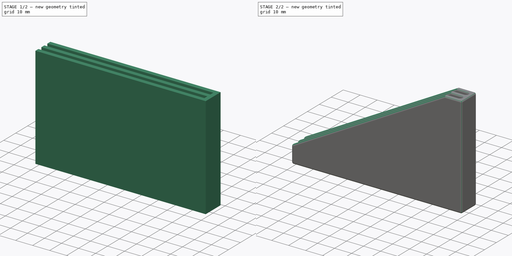
[diagram: build sequence overview — one tinted view per stage of 2, left to right]
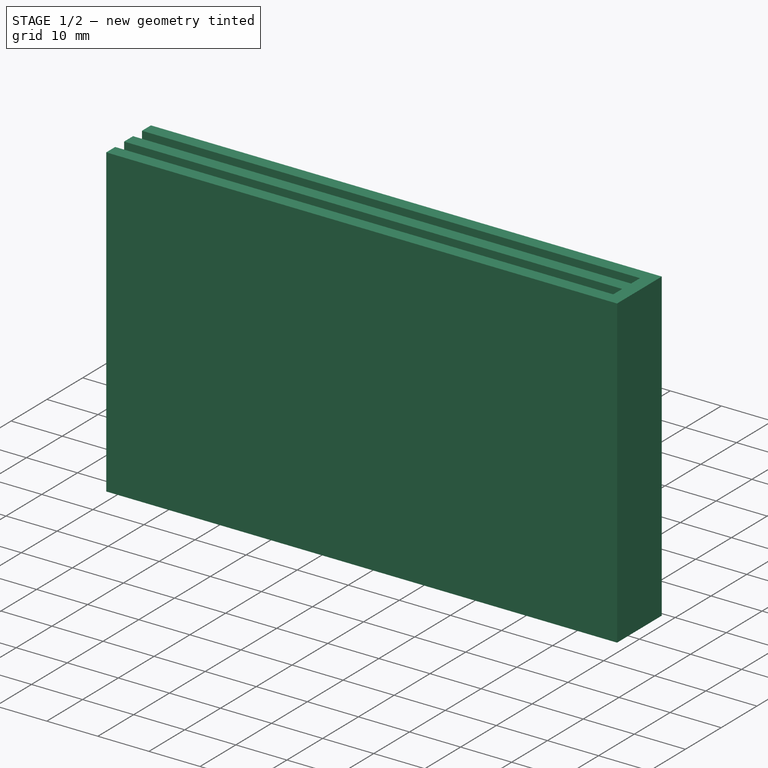
[diagram: stage 1 of 2 — iso view after this stage's code; geometry added in this stage tinted green]
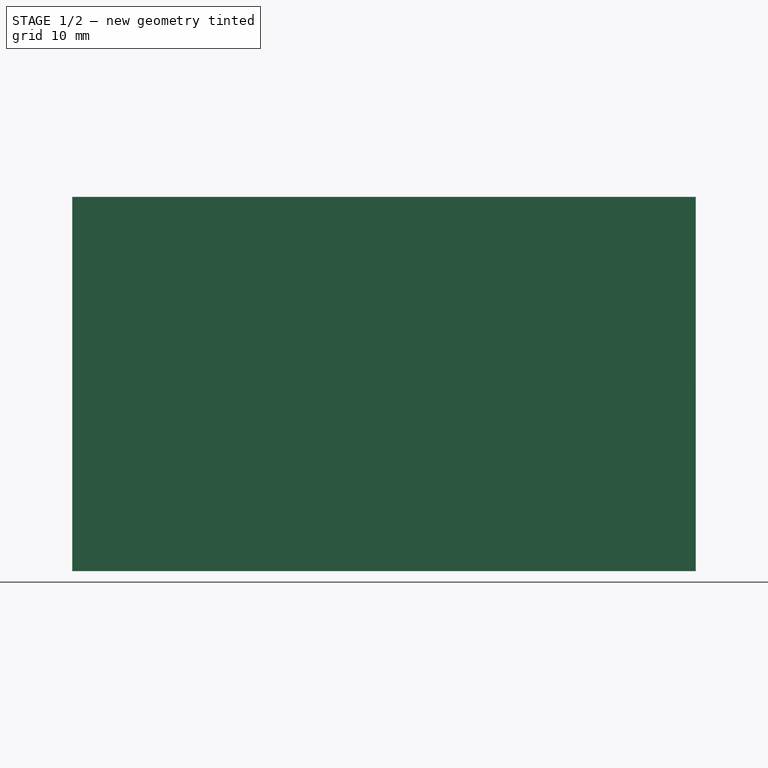
[diagram: stage 1 of 2 — front view after this stage's code; geometry added in this stage tinted green]
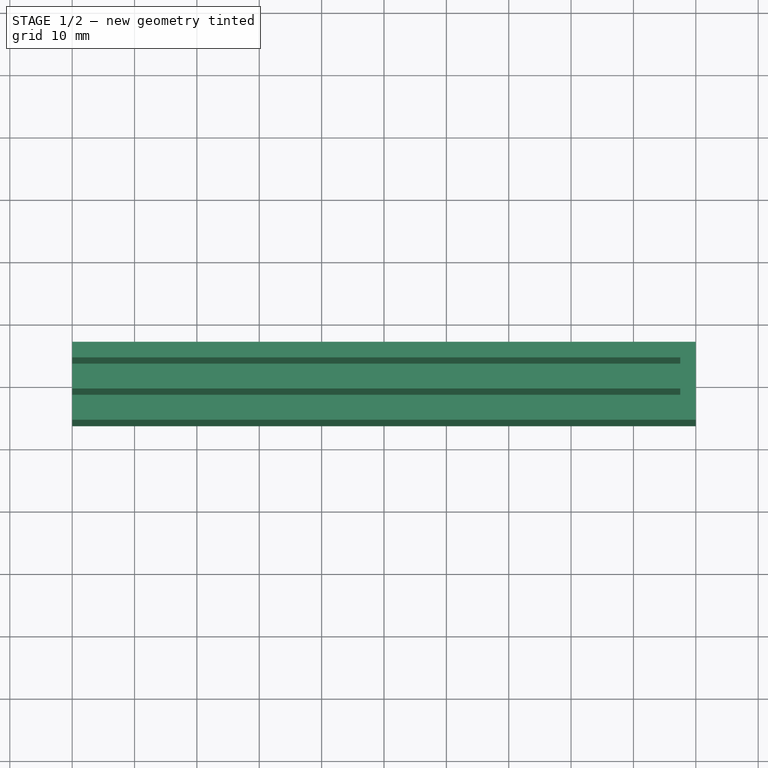
[diagram: stage 1 of 2 — top view after this stage's code; geometry added in this stage tinted green]
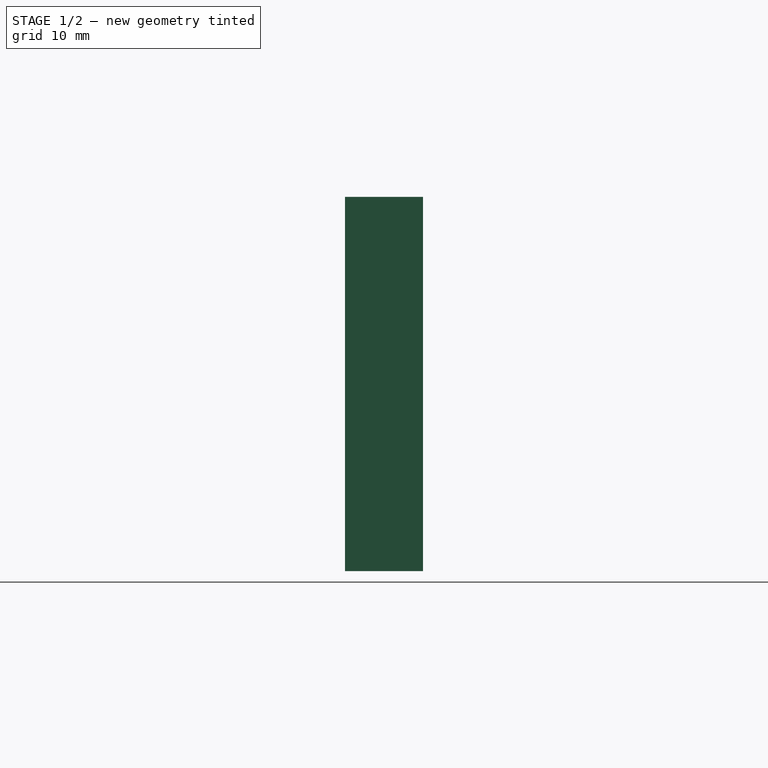
[diagram: stage 1 of 2 — right view after this stage's code; geometry added in this stage tinted green]
FCSTD DOCUMENT  (FreeCAD 1.1R20260325 (Git shallow))
Label: BuildPlateMounts
License: All rights reserved
LicenseURL: https://en.wikipedia.org/wiki/All_rights_reserved
objects: Sketcher::SketchObject×2, App::Point×1, PartDesign::Pad×1, PartDesign::Pocket×1, PartDesign::Chamfer×1, PartDesign::Fillet×1, PartDesign::Body×1
note: 17 computed .brp shape members not serialized (recipe doc carries the construction recipe); baked Part::Feature solids carry a one-line shape summary decoded from their .brp

FEATURE [App::Point] Origin001
  Role = Origin
FEATURE [Sketcher::SketchObject] Sketch  label="MainBody"
  ArcFitTolerance = 1e-06
  AttachmentSupport = -> [Origin]
  ExternalTypes = [0]
  FullyConstrained = true
  MakeInternals = false
  MapMode = 5
  _ExternalGeoVersion = 1
  sketch-geometry (5):
    g0: LineSegment StartX=-50 StartY=6.25 StartZ=0 EndX=-50 EndY=-6.25 EndZ=0
    g1: LineSegment StartX=-50 StartY=-6.25 StartZ=0 EndX=50 EndY=-6.25 EndZ=0
    g2: LineSegment StartX=50 StartY=-6.25 StartZ=0 EndX=50 EndY=6.25 EndZ=0
    g3: LineSegment StartX=50 StartY=6.25 StartZ=0 EndX=-50 EndY=6.25 EndZ=0
    g4: GeomPoint [constr] X=0 Y=-1e-16 Z=0
  constraints (12):
    c: Coincident(g0,g1)
    c: Coincident(g1,g2)
    c: Coincident(g2,g3)
    c: Coincident(g3,g0)
    c: Vertical(g0)
    c: Vertical(g2)
    c: Horizontal(g1)
    c: Horizontal(g3)
    c: Symmetric(g2,g0,g4)
    c: Coincident(g4,g-1)
    c: DistanceX(g3,g3) = 100
    c: Distance(g2,g2) = 12.5
FEATURE [PartDesign::Pad] Pad  label="MainBodyPad"
  Direction = (0,0,1)
  Length = 60
  Length2 = 10
  Profile = -> Sketch
  ReferenceAxis = -> Sketch [N_Axis]
  Refine = true
  SideType = 0
  Suppressed = false
  Type = 0
  Type2 = 0
FEATURE [Sketcher::SketchObject] Sketch001  label="Slots"
  ArcFitTolerance = 1e-06
  AttachmentSupport = -> [Pad]
  ExternalGeometry = -> [Pad]
  ExternalTypes = [0,0,0,0]
  FullyConstrained = true
  MakeInternals = false
  MapMode = 5
  Placement = pos=(0,0,60) rot=(0,0,1;0rad)
  _ExternalGeoVersion = 1
  sketch-geometry (8):
    g0: LineSegment StartX=-50 StartY=1.25 StartZ=0 EndX=47.5 EndY=1.25 EndZ=0
    g1: LineSegment StartX=47.5 StartY=1.25 StartZ=0 EndX=47.5 EndY=3.75 EndZ=0
    g2: LineSegment StartX=47.5 StartY=3.75 StartZ=0 EndX=-50 EndY=3.75 EndZ=0
    g3: LineSegment StartX=-50 StartY=3.75 StartZ=0 EndX=-50 EndY=1.25 EndZ=0
    g4: LineSegment StartX=-50 StartY=-1.25 StartZ=0 EndX=-50 EndY=-3.75 EndZ=0
    g5: LineSegment StartX=-50 StartY=-3.75 StartZ=0 EndX=47.5 EndY=-3.75 EndZ=0
    g6: LineSegment StartX=47.5 StartY=-3.75 StartZ=0 EndX=47.5 EndY=-1.25 EndZ=0
    g7: LineSegment StartX=47.5 StartY=-1.25 StartZ=0 EndX=-50 EndY=-1.25 EndZ=0
  constraints (24):
    c: Coincident(g0,g1)
    c: Coincident(g1,g2)
    c: Coincident(g2,g3)
    c: Coincident(g3,g0)
    c: Horizontal(g0)
    c: Horizontal(g2)
    c: Vertical(g1)
    c: Vertical(g3)
    c: PointOnObject(g0,g-4)
    c: Coincident(g4,g5)
    c: Coincident(g5,g6)
    c: Coincident(g6,g7)
    c: Coincident(g7,g4)
    c: Vertical(g4)
    c: Vertical(g6)
    c: Horizontal(g5)
    c: Horizontal(g7)
    c: PointOnObject(g4,g-4)
    c: Distance(g4,g4) = 2.5
    c: Distance(g3,g3) = 2.5
    c: Distance(g-3,g2) = 2.5
    c: Distance(g-5,g5) = 2.5
    c: Distance(g-6,g1) = 2.5
    c: Distance(g-6,g6) = 2.5
FEATURE [PartDesign::Pocket] Pocket  label="SlotsPocket"
  BaseFeature = -> Pad
  Direction = (0,0,-1)
  Length = 57.5
  Length2 = 5
  Profile = -> Sketch001
  ReferenceAxis = -> Sketch001 [N_Axis]
  Refine = true
  SideType = 0
  Suppressed = false
  Type = 0
  Type2 = 0
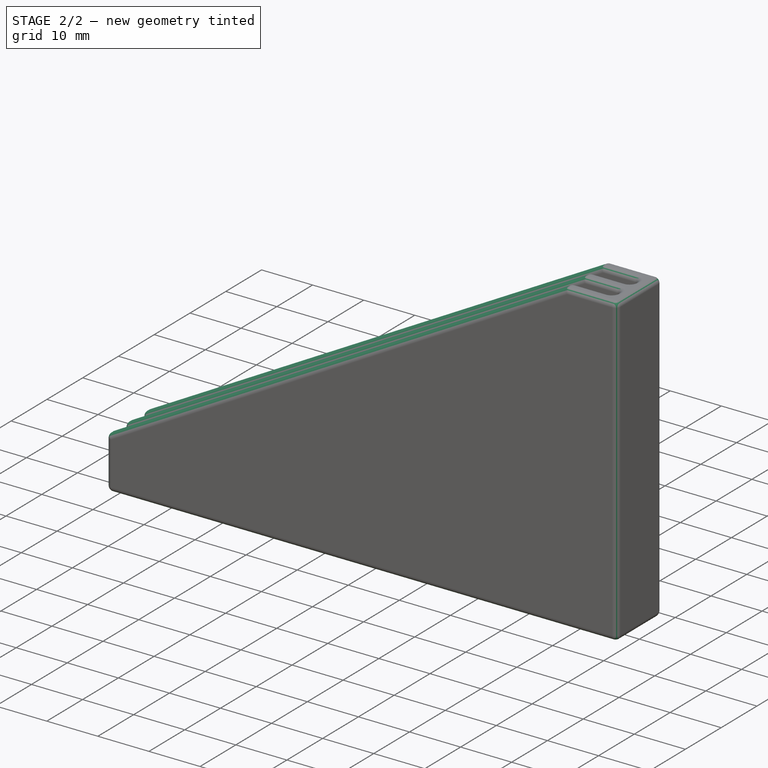
[diagram: stage 2 of 2 — iso view after this stage's code; geometry added in this stage tinted green]
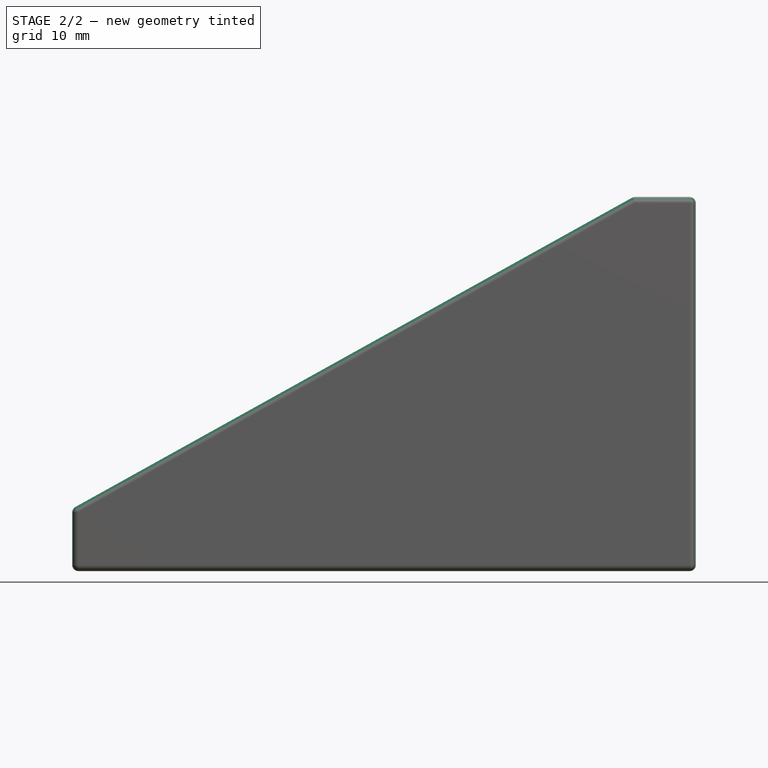
[diagram: stage 2 of 2 — front view after this stage's code; geometry added in this stage tinted green]
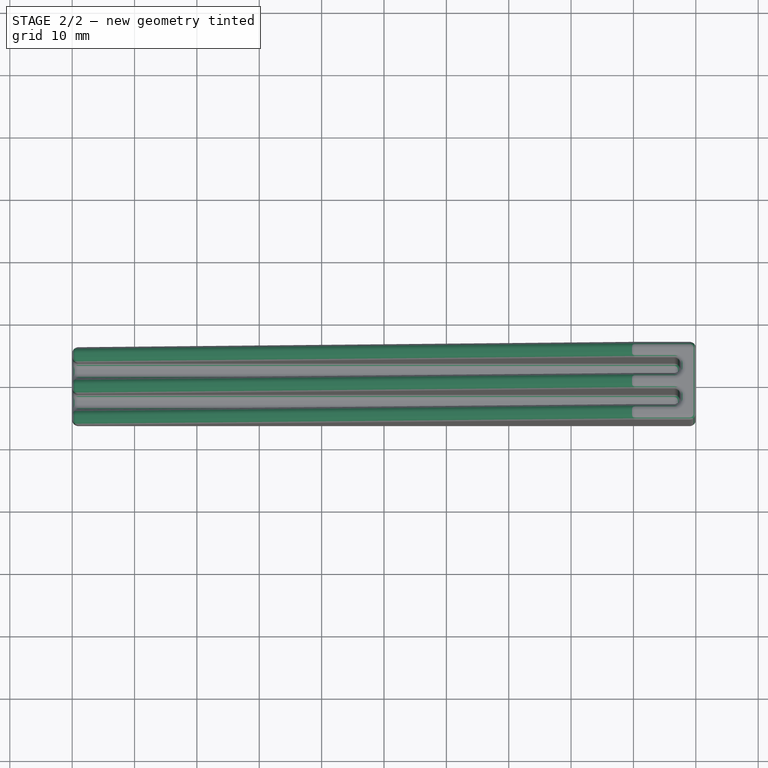
[diagram: stage 2 of 2 — top view after this stage's code; geometry added in this stage tinted green]
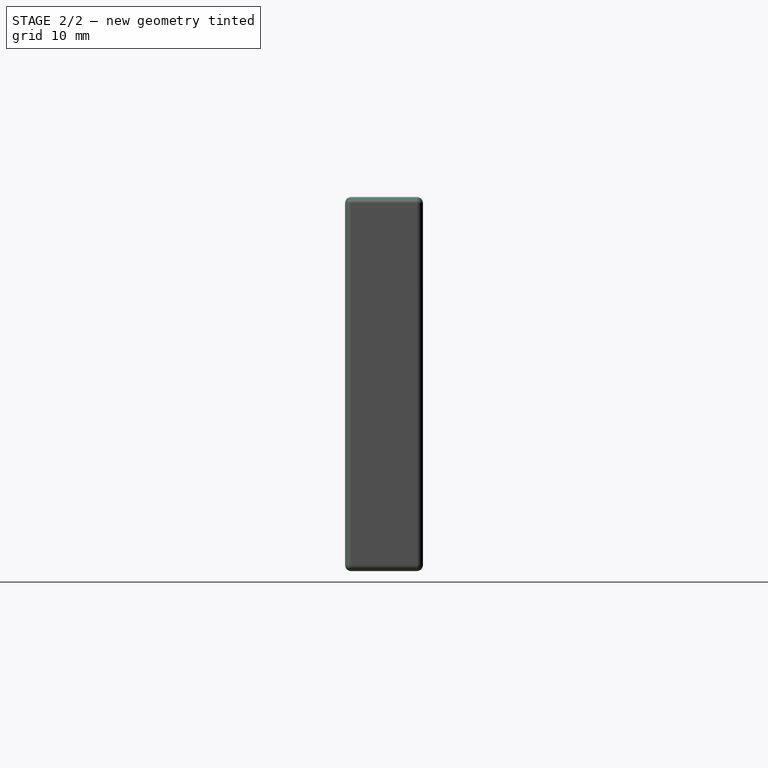
[diagram: stage 2 of 2 — right view after this stage's code; geometry added in this stage tinted green]
FEATURE [PartDesign::Chamfer] Chamfer
  Angle = 45
  Base = -> Pocket [Edge11,Edge7,Edge3]
  BaseFeature = -> Pocket
  ChamferType = 1
  FlipDirection = false
  Refine = true
  Size = 50
  Size2 = 90
  SupportTransform = false
  Suppressed = false
  UseAllEdges = false
FEATURE [PartDesign::Fillet] Fillet
  Base = -> Chamfer
  BaseFeature = -> Chamfer
  Radius = 1
  Refine = true
  SupportTransform = false
  Suppressed = false
  UseAllEdges = true
FEATURE [PartDesign::Body] Body  label="Mount"
  AllowCompound = true
  Group = -> [Sketch,Pad,Sketch001,Pocket,Chamfer,Fillet]
  Origin = -> Origin
  Tip = -> Fillet
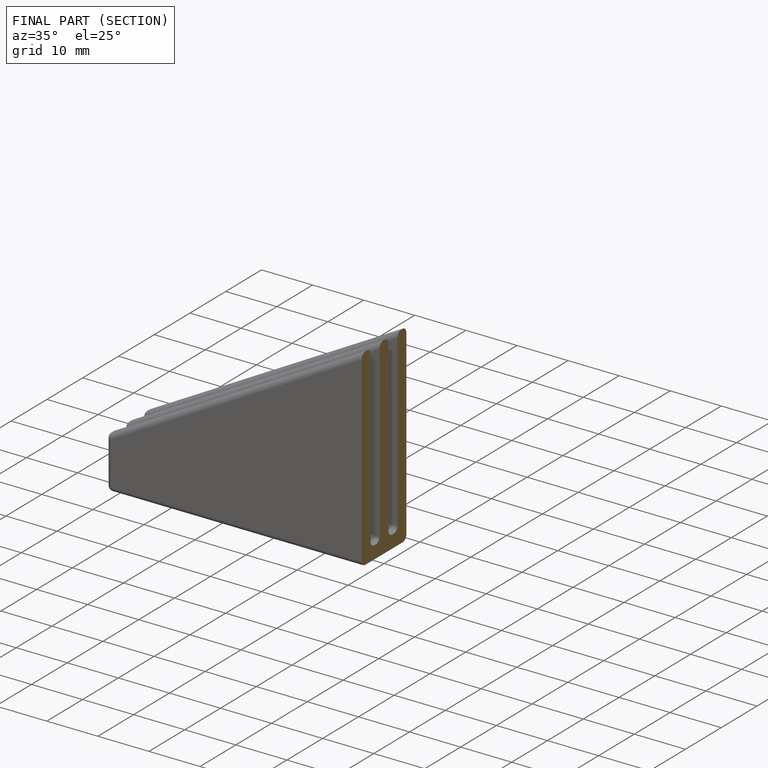
[diagram: finished part — half-section view (interior)]
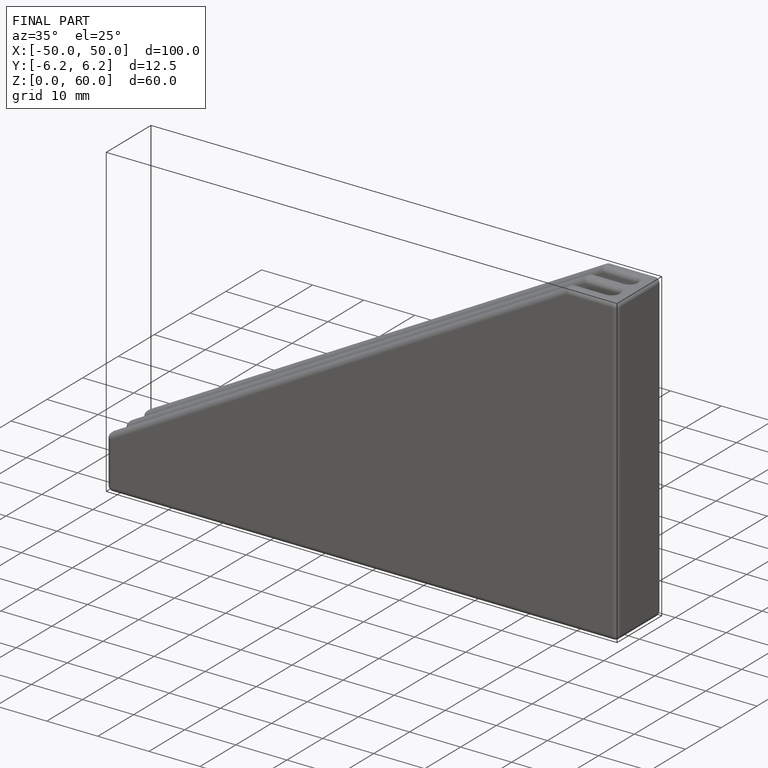
[diagram: finished part — iso view with bounding-box wireframe]
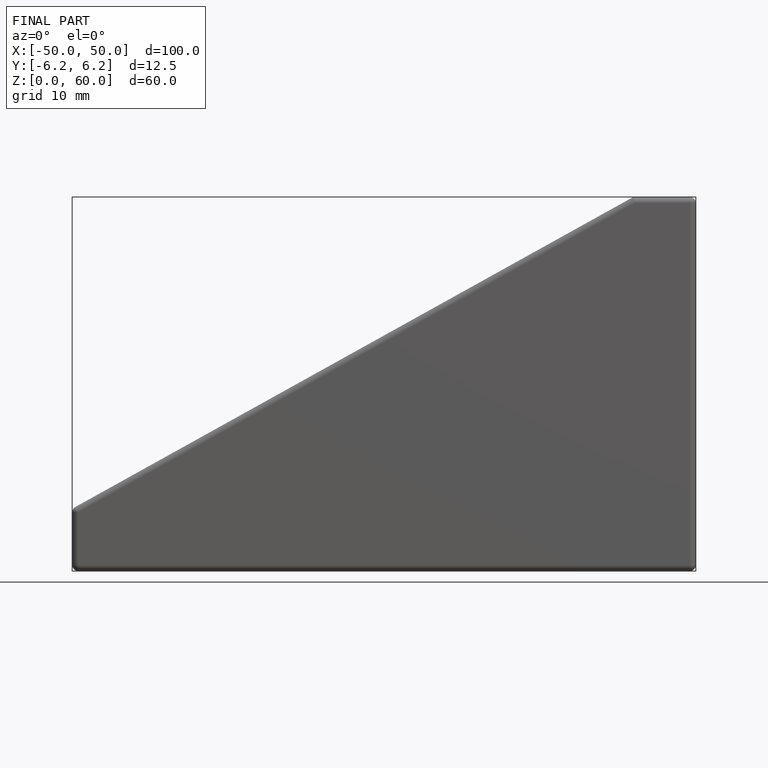
[diagram: finished part — front view with bounding-box wireframe]
